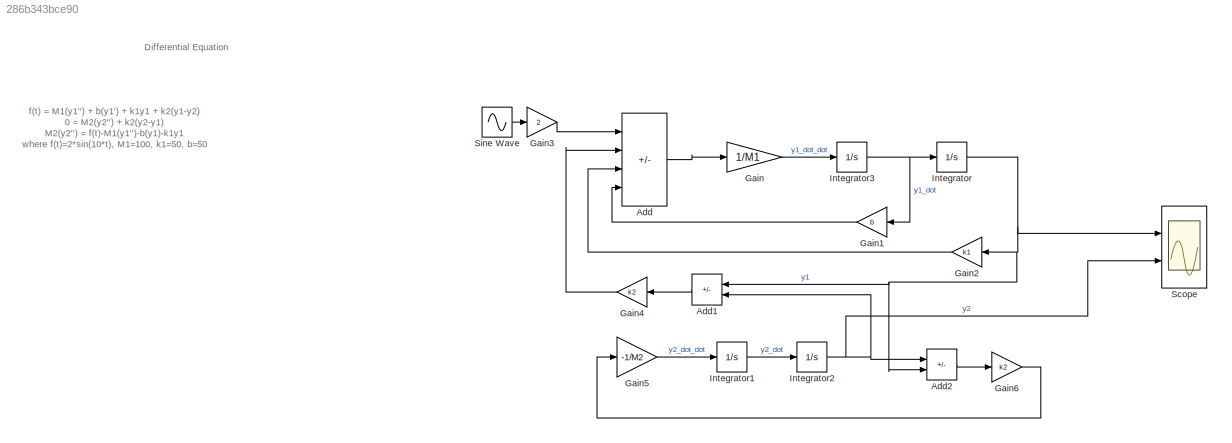
MODEL slx_286b343bce90
KIND model
CONFIG AbsTol = auto
CONFIG EnableMultiTasking = off
CONFIG FixedStep = auto
CONFIG MaxStep = auto
CONFIG MinStep = auto
CONFIG RelTol = 1e-3
CONFIG SampleTimeConstraint = Unconstrained
CONFIG Solver = VariableStepAuto
CONFIG SolverName = VariableStepAuto
CONFIG StartTime = 0.0
CONFIG StopTime = 10.0
WORKSPACE source: mxarray member
WORKSPACE M1: Simulink.Parameter (value not decoded)
WORKSPACE M2: Simulink.Parameter (value not decoded)
WORKSPACE b: Simulink.Parameter (value not decoded)
WORKSPACE k1: Simulink.Parameter (value not decoded)
WORKSPACE k2: Simulink.Parameter (value not decoded)
WORKSPACE t: Simulink.Parameter (value not decoded)
BLOCK [Sum] Add
  IconShape = rectangular
  Inputs = +---
  Ports = [4, 1]
BLOCK [Sum] Add1
  IconShape = rectangular
  Inputs = +-
  Ports = [2, 1]
BLOCK [Sum] Add2
  IconShape = rectangular
  Inputs = +-
  Ports = [2, 1]
BLOCK [Gain] Gain
  Gain = 1/M1
BLOCK [Gain] Gain1
  Gain = b
BLOCK [Gain] Gain2
  Gain = k1
BLOCK [Gain] Gain3
  Gain = 2
BLOCK [Gain] Gain4
  Gain = k2
BLOCK [Gain] Gain5
  Gain = -1/M2
BLOCK [Gain] Gain6
  Gain = k2
BLOCK [Integrator] Integrator
  Ports = [1, 1]
BLOCK [Integrator] Integrator1
  Ports = [1, 1]
BLOCK [Integrator] Integrator2
  Ports = [1, 1]
BLOCK [Integrator] Integrator3
  Ports = [1, 1]
BLOCK [Scope] Scope
  Floating = off
  NumInputPorts = 2
  Ports = [2]
  ScopeSpecificationString = Simulink.scopes.TimeScopeBlockCfg('CurrentConfiguration', extmgr.ConfigurationSet(extmgr.Configuration('Core','General UI',true),extmgr.Configuration('Core','Source UI',true),extmgr.Configuration('Sources','WiredSimulink',true),extmgr.Configuration('Visuals','Time Domain',true,'SerializedDisplays',{struct('MinYLimReal','-0.00026','MaxYLimReal','0.00046','YLabelReal','','MinYLimMag','0.00000','MaxY...<+1407ch>
BLOCK [Sin] Sine Wave
  Frequency = 10*t
  Ports = [0, 1]
  SampleTime = 0
ANNOTATION (root): f(t) = M1(y1'') + b(y1') + k1y1 + k2(y1-y2) 0 = M2(y2'') + k2(y2-y1) M2(y2'') = f(t)-M1(y1'')-b(y1)-k1y1 where f(t)=2*sin(10*t), M1=100, k1=50, b=50
ANNOTATION (root): Differential Equation
LINE Add1:1 -> Gain4:1
LINE Add2:1 -> Gain6:1
LINE Add:1 -> Gain:1
LINE Gain1:1 -> Add:4
LINE Gain2:1 -> Add:3
LINE Gain3:1 -> Add:1
LINE Gain4:1 -> Add:2
LINE Gain5:1 -> Integrator1:1
LINE Gain6:1 -> Gain5:1
LINE Gain:1 -> Integrator3:1
LINE Integrator1:1 -> Integrator2:1
NET Integrator2:1 -> Add1:2, Add2:1, Scope:2
NET Integrator3:1 -> Gain1:1, Integrator:1
NET Integrator:1 -> Add1:1, Add2:2, Gain2:1, Scope:1
LINE Sine Wave:1 -> Gain3:1
note: NET lines group one-source signal fan-out (src -> all destinations, sorted); 1:1 wires keep LINE
